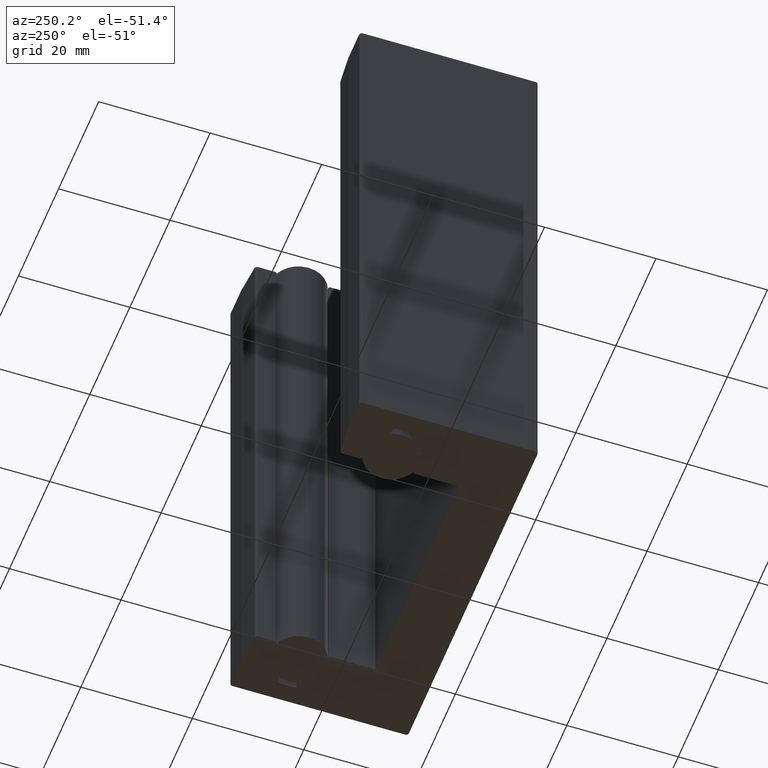
[diagram: clean part render]
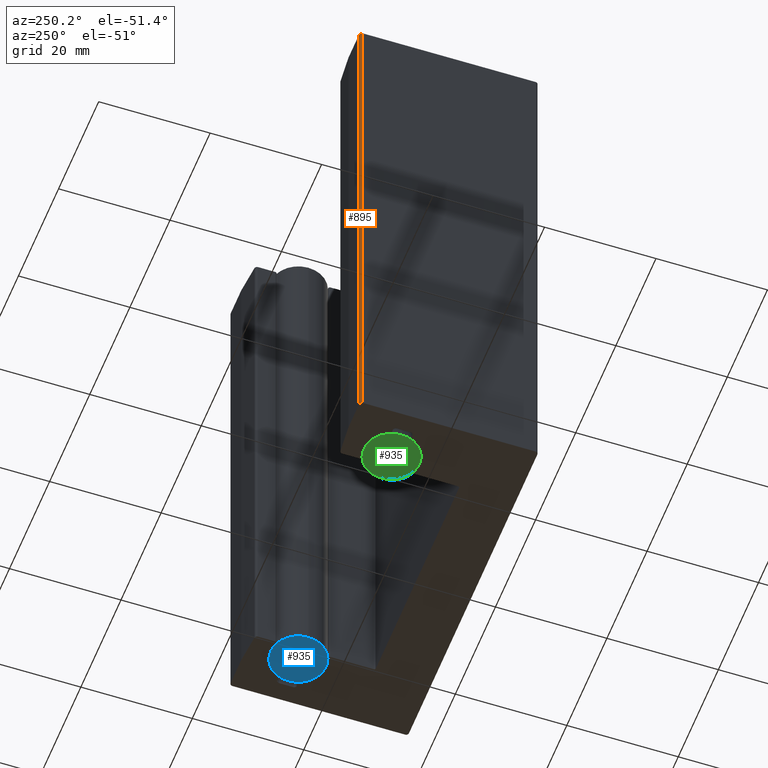
[diagram: same view with three faces highlighted in distinct colors, each labeled with its STEP entity id]
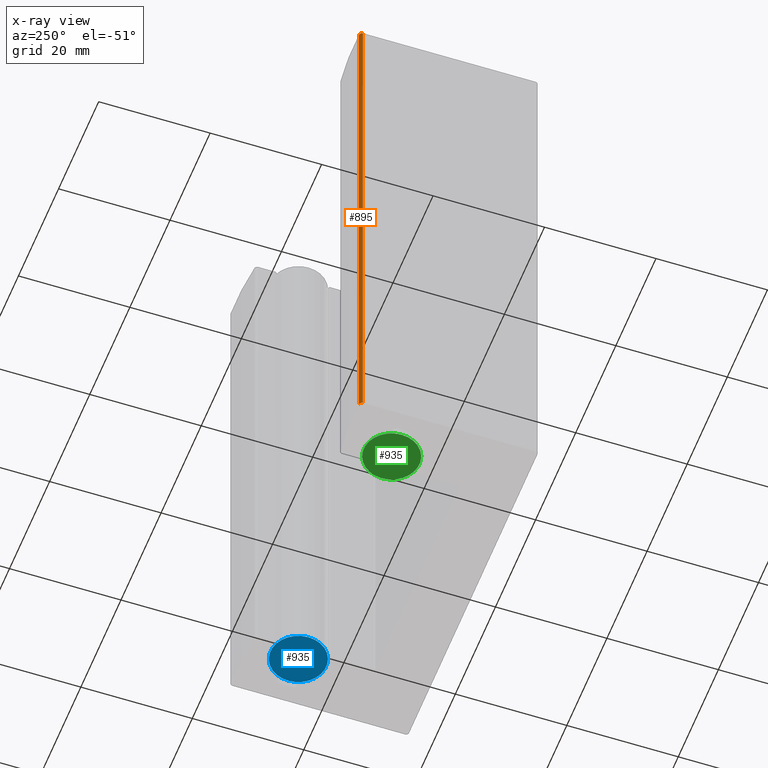
[diagram: x-ray of the same camera — body ghosted, the three highlighted faces saturated]
A machine part, auxiliary view with three faces highlighted in distinct colors.
The next image is the same camera in x-ray (body ghosted, the three faces saturated) — at least one of them is partly hidden behind the body in this view.
Their STEP definitions:

[orange] entity #895 — the highlighted cylindrical surface (edge-blend (fillet) strip) has radius 0.5 mm, axis along (0, 0, 1).
#59=FACE_OUTER_BOUND('',#108,.T.);
#108=EDGE_LOOP('',(#616,#617,#618,#619));
#163=LINE('',#1452,#244);
#165=LINE('',#1459,#246);
#244=VECTOR('',#1151,10.);
#246=VECTOR('',#1159,10.);
#319=CIRCLE('',#1017,0.5);
#320=CIRCLE('',#1018,0.5);
#381=VERTEX_POINT('',#1449);
#382=VERTEX_POINT('',#1451);
#383=VERTEX_POINT('',#1455);
#384=VERTEX_POINT('',#1457);
#475=EDGE_CURVE('',#381,#382,#163,.T.);
#477=EDGE_CURVE('',#382,#383,#319,.T.);
#478=EDGE_CURVE('',#384,#381,#320,.T.);
#479=EDGE_CURVE('',#383,#384,#165,.T.);
#616=ORIENTED_EDGE('',*,*,#477,.F.);
#617=ORIENTED_EDGE('',*,*,#475,.F.);
#618=ORIENTED_EDGE('',*,*,#478,.F.);
#619=ORIENTED_EDGE('',*,*,#479,.F.);
#865=CYLINDRICAL_SURFACE('',#1016,0.5);
#895=ADVANCED_FACE('',(#59),#865,.T.);
#1016=AXIS2_PLACEMENT_3D('',#1454,#1153,#1154);
#1017=AXIS2_PLACEMENT_3D('',#1456,#1155,#1156);
#1018=AXIS2_PLACEMENT_3D('',#1458,#1157,#1158);
#1151=DIRECTION('',(0.,0.,-1.));
#1153=DIRECTION('center_axis',(0.,0.,1.));
#1154=DIRECTION('ref_axis',(-0.707106781186548,0.707106781186547,0.));
#1155=DIRECTION('center_axis',(0.,0.,-1.));
#1156=DIRECTION('ref_axis',(-0.707106781186548,0.707106781186547,0.));
#1157=DIRECTION('center_axis',(0.,0.,1.));
#1158=DIRECTION('ref_axis',(-0.707106781186548,0.707106781186547,0.));
#1159=DIRECTION('',(0.,0.,1.));
#1449=CARTESIAN_POINT('',(-32.5,15.5,-2900.));
#1451=CARTESIAN_POINT('',(-32.5,15.5,-3000.));
#1452=CARTESIAN_POINT('',(-32.5,15.5,0.));
#1454=CARTESIAN_POINT('Origin',(-32.,15.5,0.));
#1455=CARTESIAN_POINT('',(-32.,16.,-3000.));
#1456=CARTESIAN_POINT('Origin',(-32.,15.5,-3000.));
#1457=CARTESIAN_POINT('',(-32.,16.,-2900.));
#1458=CARTESIAN_POINT('Origin',(-32.,15.5,-2900.));
#1459=CARTESIAN_POINT('',(-32.,16.,0.));

[blue] entity #935 — the highlighted planar face has unit normal (0, 0, 1).
#51=PLANE('',#1103);
#99=FACE_OUTER_BOUND('',#148,.T.);
#148=EDGE_LOOP('',(#856));
#365=CIRCLE('',#1104,5.);
#455=VERTEX_POINT('',#1680);
#589=EDGE_CURVE('',#455,#455,#365,.T.);
#856=ORIENTED_EDGE('',*,*,#589,.T.);
#935=ADVANCED_FACE('',(#99),#51,.F.);
#1103=AXIS2_PLACEMENT_3D('',#1679,#1393,#1394);
#1104=AXIS2_PLACEMENT_3D('',#1681,#1395,#1396);
#1393=DIRECTION('center_axis',(0.,0.,1.));
#1394=DIRECTION('ref_axis',(1.,0.,0.));
#1395=DIRECTION('center_axis',(0.,0.,-1.));
#1396=DIRECTION('ref_axis',(1.,0.,0.));
#1679=CARTESIAN_POINT('Origin',(-2.36064120735332E-16,0.,-50.));
#1680=CARTESIAN_POINT('',(-5.,-6.12323399573677E-16,-50.));
#1681=CARTESIAN_POINT('Origin',(0.,0.,-50.));

[green] entity #935 — the highlighted planar face has unit normal (0, 0, 1).
#51=PLANE('',#1103);
#99=FACE_OUTER_BOUND('',#148,.T.);
#148=EDGE_LOOP('',(#856));
#365=CIRCLE('',#1104,5.);
#455=VERTEX_POINT('',#1680);
#589=EDGE_CURVE('',#455,#455,#365,.T.);
#856=ORIENTED_EDGE('',*,*,#589,.T.);
#935=ADVANCED_FACE('',(#99),#51,.F.);
#1103=AXIS2_PLACEMENT_3D('',#1679,#1393,#1394);
#1104=AXIS2_PLACEMENT_3D('',#1681,#1395,#1396);
#1393=DIRECTION('center_axis',(0.,0.,1.));
#1394=DIRECTION('ref_axis',(1.,0.,0.));
#1395=DIRECTION('center_axis',(0.,0.,-1.));
#1396=DIRECTION('ref_axis',(1.,0.,0.));
#1679=CARTESIAN_POINT('Origin',(-2.36064120735332E-16,0.,-50.));
#1680=CARTESIAN_POINT('',(-5.,-6.12323399573677E-16,-50.));
#1681=CARTESIAN_POINT('Origin',(0.,0.,-50.));